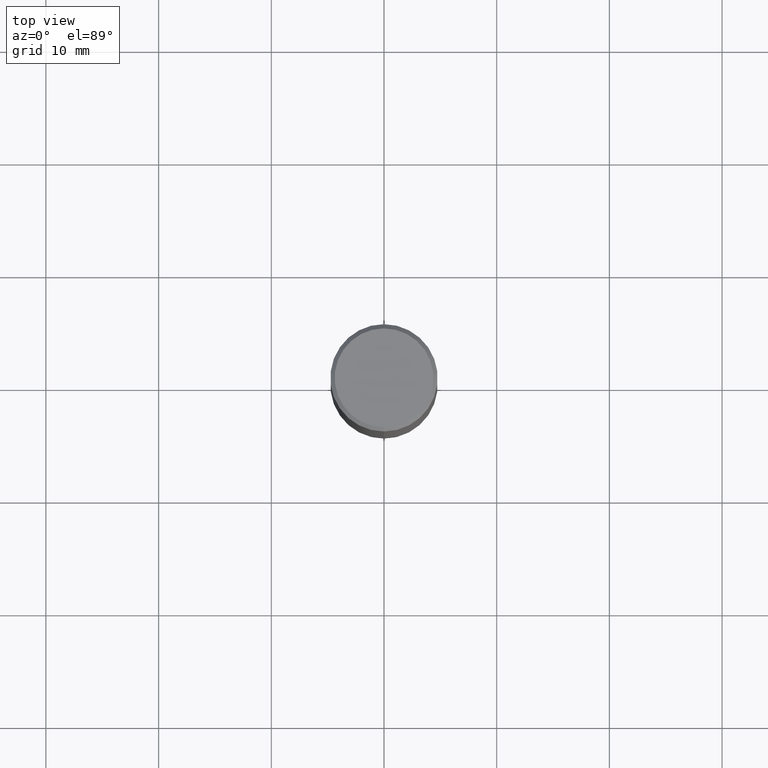
[diagram: clean part render]
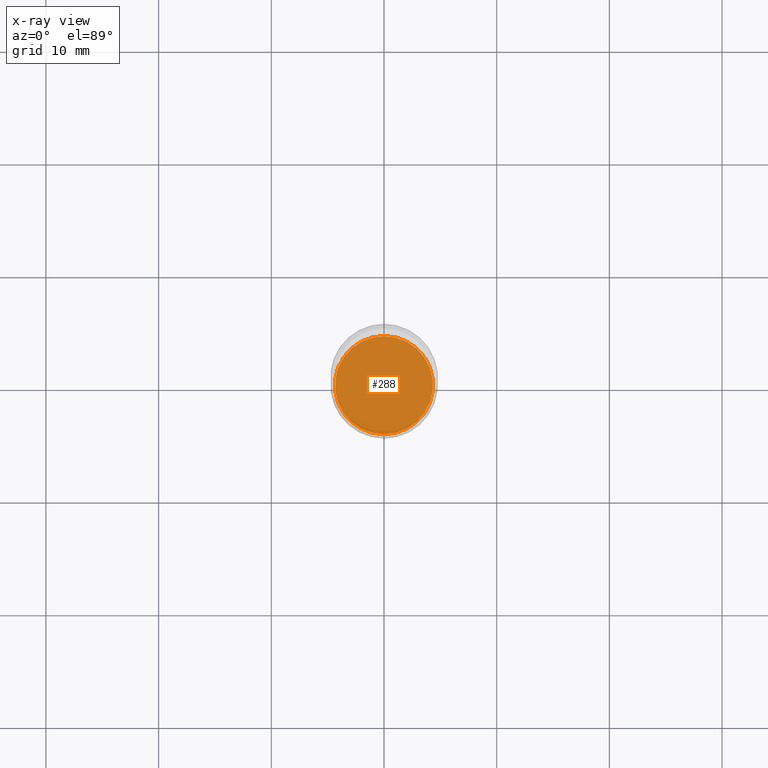
[diagram: x-ray — body ghosted, one internal face saturated and labeled with its STEP entity id]
A machine part, top view, then the same camera in x-ray: the body is ghosted and one INTERNAL B-rep face — a face not visible from any outside direction — is saturated and labeled: STEP entity #288.
In plain terms, the highlighted planar face has unit normal (-0, 0, 1).
Its self-contained STEP definition (entity closure, byte-faithful):
#2 = CARTESIAN_POINT ( 'NONE',  ( 3.668027883406983202E-29, -5.237473084890521609E-15, -1.500000000000000222 ) ) ;
#31 = AXIS2_PLACEMENT_3D ( 'NONE', #60, #453, #290 ) ;
#52 = CARTESIAN_POINT ( 'NONE',  ( -1.196879802955389158E-15, -0.1714000000000052149, -1.499999999999999556 ) ) ;
#60 = CARTESIAN_POINT ( 'NONE',  ( 3.668027883406983202E-29, -5.237473084890521609E-15, -1.500000000000000222 ) ) ;
#64 = EDGE_CURVE ( 'NONE', #316, #346, #70, .T. ) ;
#70 = CIRCLE ( 'NONE', #391, 0.1713999999999999690 ) ;
#84 = DIRECTION ( 'NONE',  ( -6.982962677686265922E-15, -1.000000000000000000, 3.491648723260347608E-15 ) ) ;
#111 = DIRECTION ( 'NONE',  ( -2.445351922271321948E-29, 3.491648723260347214E-15, 1.000000000000000000 ) ) ;
#115 = ORIENTED_EDGE ( 'NONE', *, *, #255, .F. ) ;
#121 = DIRECTION ( 'NONE',  ( -2.445351922271321387E-29, 3.491648723260347608E-15, 1.000000000000000000 ) ) ;
#147 = ORIENTED_EDGE ( 'NONE', *, *, #64, .F. ) ;
#180 = CARTESIAN_POINT ( 'NONE',  ( 1.219646605932247841E-15, 0.1713999999999947510, -1.500000000000000666 ) ) ;
#201 = CARTESIAN_POINT ( 'NONE',  ( 3.668027883406983202E-29, -5.237473084890521609E-15, -1.500000000000000222 ) ) ;
#210 = AXIS2_PLACEMENT_3D ( 'NONE', #2, #121, #84 ) ;
#255 = EDGE_CURVE ( 'NONE', #346, #316, #330, .T. ) ;
#283 = PLANE ( 'NONE',  #210 ) ;
#288 = ADVANCED_FACE ( 'NONE', ( #313 ), #283, .F. ) ;
#290 = DIRECTION ( 'NONE',  ( -6.982962677686266711E-15, -1.000000000000000000, 3.187687273820611169E-15 ) ) ;
#306 = DIRECTION ( 'NONE',  ( -6.982962677686266711E-15, -1.000000000000000000, 3.187687273820611169E-15 ) ) ;
#313 = FACE_OUTER_BOUND ( 'NONE', #374, .T. ) ;
#316 = VERTEX_POINT ( 'NONE', #52 ) ;
#330 = CIRCLE ( 'NONE', #31, 0.1713999999999999690 ) ;
#346 = VERTEX_POINT ( 'NONE', #180 ) ;
#374 = EDGE_LOOP ( 'NONE', ( #147, #115 ) ) ;
#391 = AXIS2_PLACEMENT_3D ( 'NONE', #201, #111, #306 ) ;
#453 = DIRECTION ( 'NONE',  ( -2.445351922271321948E-29, 3.491648723260347214E-15, 1.000000000000000000 ) ) ;